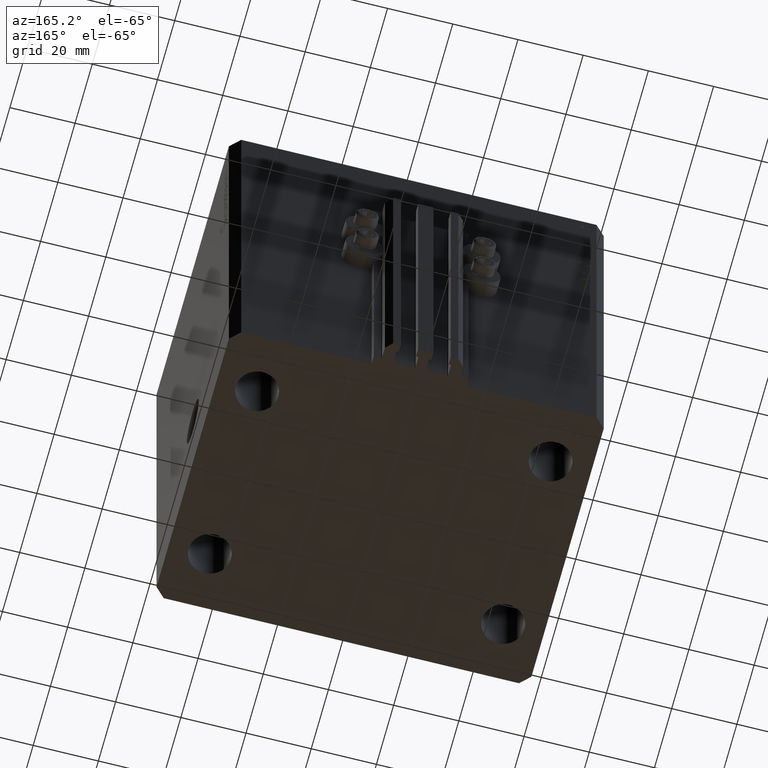
[diagram: clean part render]
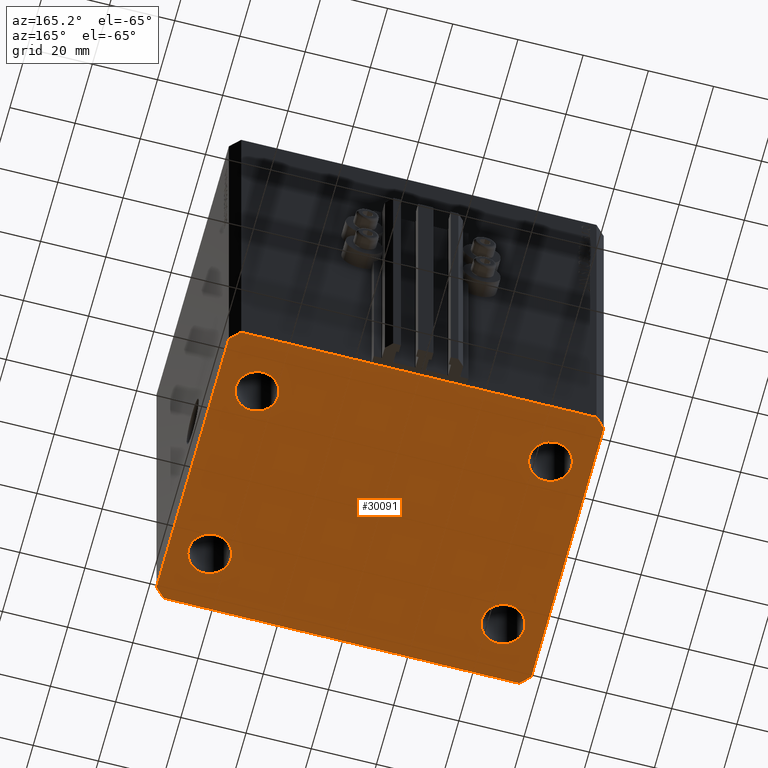
[diagram: same view with one face highlighted and labeled with its STEP entity id]
A machine part, auxiliary view. The second image highlights one B-rep face of the part: STEP entity #30091.
In plain terms, the highlighted planar face has unit normal (0, 0, 1).
Its self-contained STEP definition (entity closure, byte-faithful):
#19 = PLANE ( 'NONE',  #482 ) ;
#184 = DIRECTION ( 'NONE',  ( 1.000000000000000000, 0.000000000000000000, 0.000000000000000000 ) ) ;
#256 = DIRECTION ( 'NONE',  ( 1.000000000000000000, 0.000000000000000000, 0.000000000000000000 ) ) ;
#349 = LINE ( 'NONE', #19248, #4419 ) ;
#482 = AXIS2_PLACEMENT_3D ( 'NONE', #8149, #22746, #37277 ) ;
#502 = FACE_BOUND ( 'NONE', #23326, .T. ) ;
#580 = CIRCLE ( 'NONE', #35642, 6.499999999999999112 ) ;
#1012 = CARTESIAN_POINT ( 'NONE',  ( -38.50000000000000000, 27.49999999999999645, -135.0000000000000000 ) ) ;
#1253 = VERTEX_POINT ( 'NONE', #10489 ) ;
#1310 = ORIENTED_EDGE ( 'NONE', *, *, #31421, .F. ) ;
#1471 = AXIS2_PLACEMENT_3D ( 'NONE', #24008, #30930, #27354 ) ;
#1492 = DIRECTION ( 'NONE',  ( 0.7071067811865491270, -0.7071067811865459074, 0.000000000000000000 ) ) ;
#1947 = CIRCLE ( 'NONE', #8100, 6.499999999999999112 ) ;
#2424 = CARTESIAN_POINT ( 'NONE',  ( 57.50000000000055422, 41.99999999999997868, -135.0000000000000000 ) ) ;
#2740 = VERTEX_POINT ( 'NONE', #42439 ) ;
#2804 = ORIENTED_EDGE ( 'NONE', *, *, #38573, .F. ) ;
#3414 = CARTESIAN_POINT ( 'NONE',  ( -45.00000000000000000, 27.49999999999999645, -135.0000000000000000 ) ) ;
#3509 = CIRCLE ( 'NONE', #46210, 6.499999999999999112 ) ;
#3531 = CARTESIAN_POINT ( 'NONE',  ( -44.99999999999998579, -27.50000000000000355, -135.0000000000000000 ) ) ;
#3580 = VERTEX_POINT ( 'NONE', #14616 ) ;
#3692 = EDGE_LOOP ( 'NONE', ( #4397, #2804 ) ) ;
#3985 = AXIS2_PLACEMENT_3D ( 'NONE', #3531, #36723, #184 ) ;
#4397 = ORIENTED_EDGE ( 'NONE', *, *, #29061, .F. ) ;
#4419 = VECTOR ( 'NONE', #29499, 1000.000000000000000 ) ;
#4506 = CARTESIAN_POINT ( 'NONE',  ( 44.99999999999998579, -27.50000000000000355, -135.0000000000000000 ) ) ;
#5278 = EDGE_CURVE ( 'NONE', #28707, #10170, #9308, .T. ) ;
#5401 = DIRECTION ( 'NONE',  ( -1.000000000000000000, -2.546383084002638829E-16, 0.000000000000000000 ) ) ;
#6442 = EDGE_CURVE ( 'NONE', #38034, #35449, #37854, .T. ) ;
#7187 = FACE_BOUND ( 'NONE', #39043, .T. ) ;
#7440 = EDGE_CURVE ( 'NONE', #31247, #2740, #40172, .T. ) ;
#8100 = AXIS2_PLACEMENT_3D ( 'NONE', #8411, #37296, #44689 ) ;
#8149 = CARTESIAN_POINT ( 'NONE',  ( 0.000000000000000000, 0.000000000000000000, -135.0000000000000000 ) ) ;
#8202 = CIRCLE ( 'NONE', #37166, 6.499999999999999112 ) ;
#8406 = CIRCLE ( 'NONE', #36578, 6.499999999999999112 ) ;
#8411 = CARTESIAN_POINT ( 'NONE',  ( -45.00000000000000000, 27.49999999999999645, -135.0000000000000000 ) ) ;
#8438 = LINE ( 'NONE', #19891, #38084 ) ;
#8629 = EDGE_CURVE ( 'NONE', #1253, #31247, #8438, .T. ) ;
#8907 = VECTOR ( 'NONE', #10016, 1000.000000000000000 ) ;
#9308 = CIRCLE ( 'NONE', #3985, 6.499999999999999112 ) ;
#9622 = AXIS2_PLACEMENT_3D ( 'NONE', #32986, #33223, #256 ) ;
#9745 = EDGE_LOOP ( 'NONE', ( #44822, #40425 ) ) ;
#9954 = DIRECTION ( 'NONE',  ( -0.7071067811865483499, -0.7071067811865466846, 0.000000000000000000 ) ) ;
#10016 = DIRECTION ( 'NONE',  ( 6.443258625056715108E-15, 1.000000000000000000, 0.000000000000000000 ) ) ;
#10170 = VERTEX_POINT ( 'NONE', #14537 ) ;
#10489 = CARTESIAN_POINT ( 'NONE',  ( -57.50000000000000711, -42.00000000000000711, -135.0000000000000000 ) ) ;
#11665 = DIRECTION ( 'NONE',  ( -0.000000000000000000, -0.000000000000000000, -1.000000000000000000 ) ) ;
#12113 = ORIENTED_EDGE ( 'NONE', *, *, #33088, .F. ) ;
#12745 = VERTEX_POINT ( 'NONE', #15910 ) ;
#12812 = ORIENTED_EDGE ( 'NONE', *, *, #8629, .F. ) ;
#13934 = DIRECTION ( 'NONE',  ( 1.000000000000000000, 0.000000000000000000, 0.000000000000000000 ) ) ;
#14061 = CARTESIAN_POINT ( 'NONE',  ( 57.50000000000000711, -41.99999999999998579, -135.0000000000000000 ) ) ;
#14473 = CARTESIAN_POINT ( 'NONE',  ( -51.49999999999998579, -27.50000000000000355, -135.0000000000000000 ) ) ;
#14537 = CARTESIAN_POINT ( 'NONE',  ( -38.49999999999998579, -27.50000000000000355, -135.0000000000000000 ) ) ;
#14616 = CARTESIAN_POINT ( 'NONE',  ( 51.50000000000000000, 27.49999999999999289, -135.0000000000000000 ) ) ;
#14776 = ORIENTED_EDGE ( 'NONE', *, *, #28494, .F. ) ;
#15816 = CARTESIAN_POINT ( 'NONE',  ( -44.99999999999998579, -27.50000000000000355, -135.0000000000000000 ) ) ;
#15910 = CARTESIAN_POINT ( 'NONE',  ( -51.50000000000000000, 27.49999999999999645, -135.0000000000000000 ) ) ;
#16188 = DIRECTION ( 'NONE',  ( 1.000000000000000000, 0.000000000000000000, 0.000000000000000000 ) ) ;
#16244 = CARTESIAN_POINT ( 'NONE',  ( 51.49999999999998579, -27.50000000000000355, -135.0000000000000000 ) ) ;
#16510 = VECTOR ( 'NONE', #5401, 1000.000000000000000 ) ;
#18519 = VERTEX_POINT ( 'NONE', #28495 ) ;
#18561 = CARTESIAN_POINT ( 'NONE',  ( 38.50000000000000000, 27.49999999999999289, -135.0000000000000000 ) ) ;
#18653 = CARTESIAN_POINT ( 'NONE',  ( 54.50000000000059686, 45.00000000000002842, -135.0000000000000000 ) ) ;
#18778 = DIRECTION ( 'NONE',  ( -0.7071067811865369146, 0.7071067811865581199, 0.000000000000000000 ) ) ;
#18815 = EDGE_CURVE ( 'NONE', #40432, #1253, #23029, .T. ) ;
#18919 = CARTESIAN_POINT ( 'NONE',  ( 45.00000000000000000, 27.49999999999999289, -135.0000000000000000 ) ) ;
#19248 = CARTESIAN_POINT ( 'NONE',  ( 54.50000000000000711, -44.99999999999998579, -135.0000000000000000 ) ) ;
#19281 = LINE ( 'NONE', #20190, #16510 ) ;
#19428 = CARTESIAN_POINT ( 'NONE',  ( -57.49999999999998579, 42.00000000000000711, -135.0000000000000000 ) ) ;
#19891 = CARTESIAN_POINT ( 'NONE',  ( -57.50000000000000711, -42.00000000000000711, -135.0000000000000000 ) ) ;
#20190 = CARTESIAN_POINT ( 'NONE',  ( 54.50000000000059686, 45.00000000000002842, -135.0000000000000000 ) ) ;
#20713 = CARTESIAN_POINT ( 'NONE',  ( 57.50000000000000711, -41.99999999999998579, -135.0000000000000000 ) ) ;
#21149 = ORIENTED_EDGE ( 'NONE', *, *, #5278, .F. ) ;
#22746 = DIRECTION ( 'NONE',  ( 0.000000000000000000, 0.000000000000000000, 1.000000000000000000 ) ) ;
#22819 = CARTESIAN_POINT ( 'NONE',  ( -57.49999999999998579, 42.00000000000000711, -135.0000000000000000 ) ) ;
#23029 = LINE ( 'NONE', #19428, #41428 ) ;
#23326 = EDGE_LOOP ( 'NONE', ( #12113, #21149 ) ) ;
#23440 = DIRECTION ( 'NONE',  ( 1.000000000000000000, 0.000000000000000000, 0.000000000000000000 ) ) ;
#23613 = CIRCLE ( 'NONE', #1471, 6.499999999999999112 ) ;
#24008 = CARTESIAN_POINT ( 'NONE',  ( 45.00000000000000000, 27.49999999999999289, -135.0000000000000000 ) ) ;
#24399 = VECTOR ( 'NONE', #9954, 1000.000000000000000 ) ;
#24983 = VECTOR ( 'NONE', #18778, 1000.000000000000000 ) ;
#25052 = LINE ( 'NONE', #14061, #8907 ) ;
#25098 = EDGE_CURVE ( 'NONE', #12745, #40743, #1947, .T. ) ;
#25966 = VERTEX_POINT ( 'NONE', #28779 ) ;
#26023 = ORIENTED_EDGE ( 'NONE', *, *, #39330, .F. ) ;
#26310 = FACE_BOUND ( 'NONE', #3692, .T. ) ;
#26357 = DIRECTION ( 'NONE',  ( -2.478176394252581141E-16, -1.000000000000000000, 0.000000000000000000 ) ) ;
#26418 = CIRCLE ( 'NONE', #9622, 6.499999999999999112 ) ;
#26992 = EDGE_CURVE ( 'NONE', #40743, #12745, #3509, .T. ) ;
#27177 = LINE ( 'NONE', #31226, #24399 ) ;
#27354 = DIRECTION ( 'NONE',  ( 1.000000000000000000, 0.000000000000000000, 0.000000000000000000 ) ) ;
#27386 = ORIENTED_EDGE ( 'NONE', *, *, #7440, .F. ) ;
#27684 = VERTEX_POINT ( 'NONE', #16244 ) ;
#28494 = EDGE_CURVE ( 'NONE', #39387, #38034, #25052, .T. ) ;
#28495 = CARTESIAN_POINT ( 'NONE',  ( 38.49999999999998579, -27.50000000000000355, -135.0000000000000000 ) ) ;
#28707 = VERTEX_POINT ( 'NONE', #14473 ) ;
#28779 = CARTESIAN_POINT ( 'NONE',  ( -54.49999999999999289, 45.00000000000000000, -135.0000000000000000 ) ) ;
#29061 = EDGE_CURVE ( 'NONE', #3580, #43244, #8202, .T. ) ;
#29386 = ORIENTED_EDGE ( 'NONE', *, *, #30148, .F. ) ;
#29499 = DIRECTION ( 'NONE',  ( 0.7071067811865483499, 0.7071067811865466846, 0.000000000000000000 ) ) ;
#29896 = FACE_OUTER_BOUND ( 'NONE', #38069, .T. ) ;
#30091 = ADVANCED_FACE ( 'NONE', ( #502, #7187, #26310, #36321, #29896 ), #19, .F. ) ;
#30135 = DIRECTION ( 'NONE',  ( -0.000000000000000000, -0.000000000000000000, -1.000000000000000000 ) ) ;
#30148 = EDGE_CURVE ( 'NONE', #27684, #18519, #26418, .T. ) ;
#30394 = DIRECTION ( 'NONE',  ( -0.000000000000000000, -0.000000000000000000, -1.000000000000000000 ) ) ;
#30930 = DIRECTION ( 'NONE',  ( -0.000000000000000000, -0.000000000000000000, -1.000000000000000000 ) ) ;
#31226 = CARTESIAN_POINT ( 'NONE',  ( -54.49999999999999289, 45.00000000000000000, -135.0000000000000000 ) ) ;
#31247 = VERTEX_POINT ( 'NONE', #46711 ) ;
#31304 = ORIENTED_EDGE ( 'NONE', *, *, #39223, .F. ) ;
#31421 = EDGE_CURVE ( 'NONE', #35449, #25966, #19281, .T. ) ;
#32548 = CARTESIAN_POINT ( 'NONE',  ( -54.50000000000000711, -45.00000000000000000, -135.0000000000000000 ) ) ;
#32986 = CARTESIAN_POINT ( 'NONE',  ( 44.99999999999998579, -27.50000000000000355, -135.0000000000000000 ) ) ;
#33088 = EDGE_CURVE ( 'NONE', #10170, #28707, #580, .T. ) ;
#33223 = DIRECTION ( 'NONE',  ( -0.000000000000000000, -0.000000000000000000, -1.000000000000000000 ) ) ;
#33851 = EDGE_CURVE ( 'NONE', #2740, #39387, #349, .T. ) ;
#34275 = CARTESIAN_POINT ( 'NONE',  ( 57.50000000000055422, 41.99999999999997868, -135.0000000000000000 ) ) ;
#35449 = VERTEX_POINT ( 'NONE', #18653 ) ;
#35642 = AXIS2_PLACEMENT_3D ( 'NONE', #15816, #30394, #38002 ) ;
#35740 = ORIENTED_EDGE ( 'NONE', *, *, #33851, .F. ) ;
#36321 = FACE_BOUND ( 'NONE', #9745, .T. ) ;
#36363 = DIRECTION ( 'NONE',  ( 1.000000000000000000, 1.273191542001326317E-16, 0.000000000000000000 ) ) ;
#36578 = AXIS2_PLACEMENT_3D ( 'NONE', #4506, #11665, #16188 ) ;
#36723 = DIRECTION ( 'NONE',  ( -0.000000000000000000, -0.000000000000000000, -1.000000000000000000 ) ) ;
#37166 = AXIS2_PLACEMENT_3D ( 'NONE', #18919, #30135, #23440 ) ;
#37277 = DIRECTION ( 'NONE',  ( 1.000000000000000000, 0.000000000000000000, -0.000000000000000000 ) ) ;
#37296 = DIRECTION ( 'NONE',  ( -0.000000000000000000, -0.000000000000000000, -1.000000000000000000 ) ) ;
#37854 = LINE ( 'NONE', #34275, #24983 ) ;
#38002 = DIRECTION ( 'NONE',  ( 1.000000000000000000, 0.000000000000000000, 0.000000000000000000 ) ) ;
#38034 = VERTEX_POINT ( 'NONE', #2424 ) ;
#38069 = EDGE_LOOP ( 'NONE', ( #1310, #43704, #14776, #35740, #27386, #12812, #39286, #26023 ) ) ;
#38084 = VECTOR ( 'NONE', #1492, 1000.000000000000114 ) ;
#38573 = EDGE_CURVE ( 'NONE', #43244, #3580, #23613, .T. ) ;
#39043 = EDGE_LOOP ( 'NONE', ( #29386, #31304 ) ) ;
#39223 = EDGE_CURVE ( 'NONE', #18519, #27684, #8406, .T. ) ;
#39286 = ORIENTED_EDGE ( 'NONE', *, *, #18815, .F. ) ;
#39330 = EDGE_CURVE ( 'NONE', #25966, #40432, #27177, .T. ) ;
#39387 = VERTEX_POINT ( 'NONE', #20713 ) ;
#40172 = LINE ( 'NONE', #32548, #41852 ) ;
#40425 = ORIENTED_EDGE ( 'NONE', *, *, #25098, .F. ) ;
#40432 = VERTEX_POINT ( 'NONE', #22819 ) ;
#40743 = VERTEX_POINT ( 'NONE', #1012 ) ;
#41428 = VECTOR ( 'NONE', #26357, 1000.000000000000000 ) ;
#41852 = VECTOR ( 'NONE', #36363, 1000.000000000000000 ) ;
#42439 = CARTESIAN_POINT ( 'NONE',  ( 54.50000000000000711, -44.99999999999998579, -135.0000000000000000 ) ) ;
#43244 = VERTEX_POINT ( 'NONE', #18561 ) ;
#43704 = ORIENTED_EDGE ( 'NONE', *, *, #6442, .F. ) ;
#44689 = DIRECTION ( 'NONE',  ( 1.000000000000000000, 0.000000000000000000, 0.000000000000000000 ) ) ;
#44822 = ORIENTED_EDGE ( 'NONE', *, *, #26992, .F. ) ;
#46210 = AXIS2_PLACEMENT_3D ( 'NONE', #3414, #46854, #13934 ) ;
#46711 = CARTESIAN_POINT ( 'NONE',  ( -54.50000000000000711, -45.00000000000000000, -135.0000000000000000 ) ) ;
#46854 = DIRECTION ( 'NONE',  ( -0.000000000000000000, -0.000000000000000000, -1.000000000000000000 ) ) ;